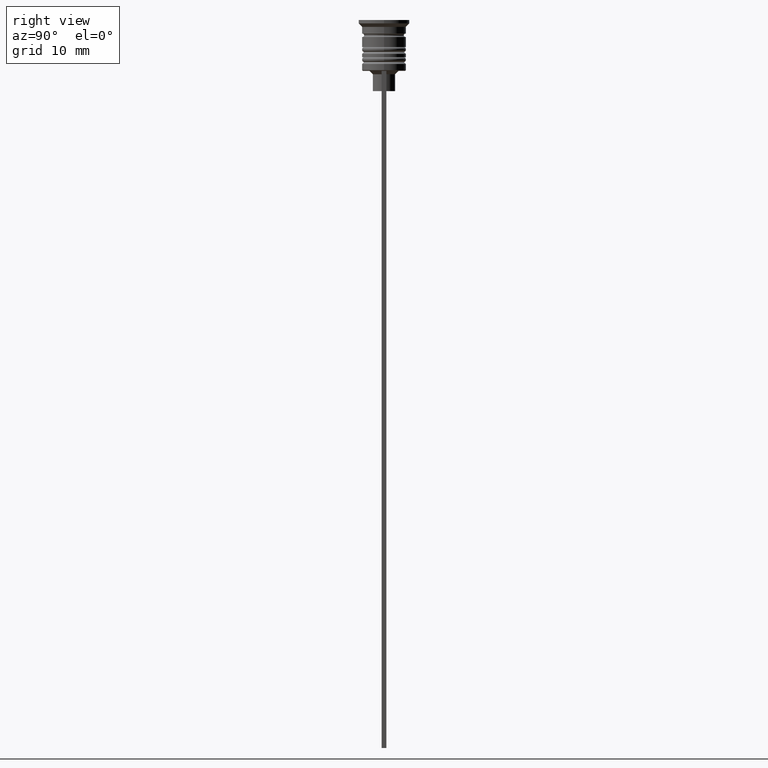
[diagram: clean part render]
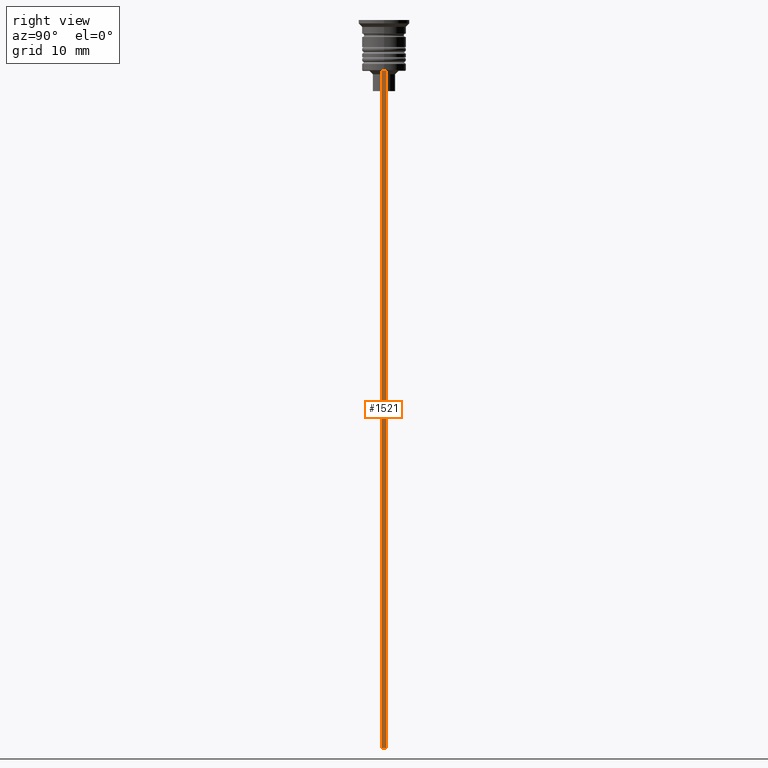
[diagram: same view with one face highlighted and labeled with its STEP entity id]
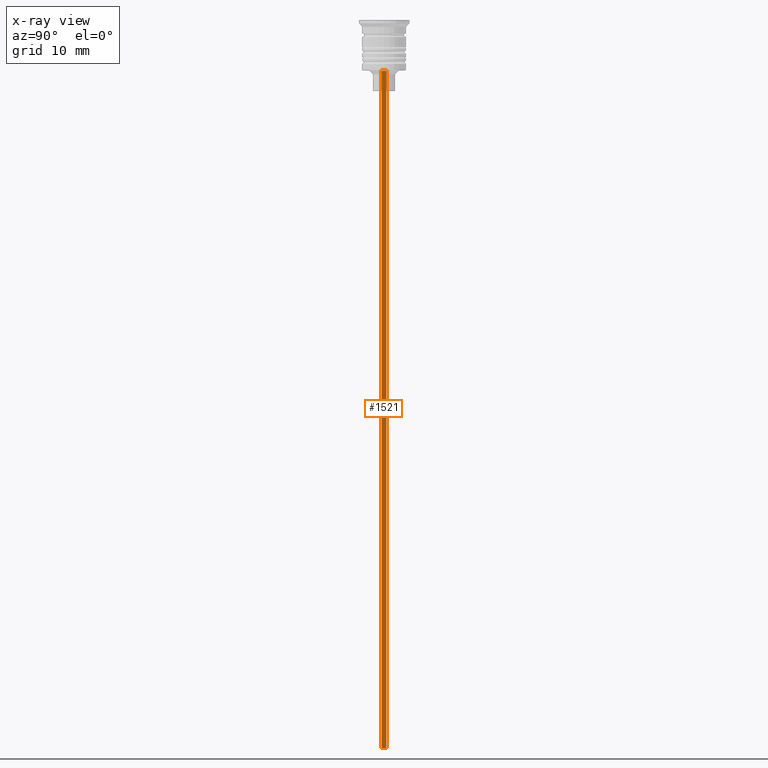
[diagram: x-ray of the same camera — body ghosted, the highlighted face saturated]
A machine part, right view. The second image highlights one B-rep face of the part: STEP entity #1521.
The next image is the same camera in x-ray: the body ghosted, the highlighted face saturated — about 0% of this face is hidden behind the body in this view.
In plain terms, the highlighted planar face has unit normal (-1, 0, 0).
Its self-contained STEP definition (entity closure, byte-faithful):
#24 = LINE ( 'NONE', #1868, #1920 ) ;
#151 = PLANE ( 'NONE',  #1078 ) ;
#189 = CARTESIAN_POINT ( 'NONE',  ( 2.999999999999995559, -0.3500000000000000333, -1.459304675784417915 ) ) ;
#288 = CARTESIAN_POINT ( 'NONE',  ( 2.999999999999995559, -0.3500000000000000333, -7.500000000000000000 ) ) ;
#302 = VECTOR ( 'NONE', #346, 1000.000000000000000 ) ;
#346 = DIRECTION ( 'NONE',  ( 0.000000000000000000, 0.000000000000000000, -1.000000000000000000 ) ) ;
#360 = DIRECTION ( 'NONE',  ( 0.000000000000000000, -1.000000000000000000, 0.000000000000000000 ) ) ;
#423 = VERTEX_POINT ( 'NONE', #1264 ) ;
#523 = CARTESIAN_POINT ( 'NONE',  ( 2.999999999999995559, 0.3500000000000000333, -1.459304675784417915 ) ) ;
#532 = LINE ( 'NONE', #523, #302 ) ;
#588 = VECTOR ( 'NONE', #1514, 1000.000000000000000 ) ;
#638 = EDGE_CURVE ( 'NONE', #1640, #1828, #1021, .T. ) ;
#738 = DIRECTION ( 'NONE',  ( 0.000000000000000000, 0.000000000000000000, 1.000000000000000000 ) ) ;
#744 = EDGE_CURVE ( 'NONE', #423, #1640, #24, .T. ) ;
#960 = LINE ( 'NONE', #992, #1998 ) ;
#970 = DIRECTION ( 'NONE',  ( 0.000000000000000000, 1.000000000000000000, 0.000000000000000000 ) ) ;
#992 = CARTESIAN_POINT ( 'NONE',  ( 2.999999999999995559, -0.3500000000000000333, -107.5000000000000000 ) ) ;
#1021 = LINE ( 'NONE', #189, #588 ) ;
#1078 = AXIS2_PLACEMENT_3D ( 'NONE', #1370, #1754, #738 ) ;
#1108 = ORIENTED_EDGE ( 'NONE', *, *, #1445, .T. ) ;
#1132 = ORIENTED_EDGE ( 'NONE', *, *, #1188, .F. ) ;
#1188 = EDGE_CURVE ( 'NONE', #423, #1966, #532, .T. ) ;
#1218 = ORIENTED_EDGE ( 'NONE', *, *, #744, .T. ) ;
#1264 = CARTESIAN_POINT ( 'NONE',  ( 2.999999999999995559, 0.3500000000000000333, -7.500000000000000000 ) ) ;
#1367 = CARTESIAN_POINT ( 'NONE',  ( 2.999999999999995559, 0.3500000000000000333, -107.5000000000000000 ) ) ;
#1370 = CARTESIAN_POINT ( 'NONE',  ( 2.999999999999995559, -0.3500000000000000333, -1.459304675784417915 ) ) ;
#1425 = EDGE_LOOP ( 'NONE', ( #1132, #1218, #1459, #1108 ) ) ;
#1445 = EDGE_CURVE ( 'NONE', #1828, #1966, #960, .T. ) ;
#1459 = ORIENTED_EDGE ( 'NONE', *, *, #638, .T. ) ;
#1514 = DIRECTION ( 'NONE',  ( 0.000000000000000000, 0.000000000000000000, -1.000000000000000000 ) ) ;
#1521 = ADVANCED_FACE ( 'NONE', ( #1657 ), #151, .F. ) ;
#1640 = VERTEX_POINT ( 'NONE', #288 ) ;
#1657 = FACE_OUTER_BOUND ( 'NONE', #1425, .T. ) ;
#1684 = CARTESIAN_POINT ( 'NONE',  ( 2.999999999999995559, -0.3500000000000000333, -107.5000000000000000 ) ) ;
#1754 = DIRECTION ( 'NONE',  ( -1.000000000000000000, 0.000000000000000000, 0.000000000000000000 ) ) ;
#1828 = VERTEX_POINT ( 'NONE', #1684 ) ;
#1868 = CARTESIAN_POINT ( 'NONE',  ( 2.999999999999995559, -0.3500000000000000333, -7.500000000000000000 ) ) ;
#1920 = VECTOR ( 'NONE', #360, 1000.000000000000000 ) ;
#1966 = VERTEX_POINT ( 'NONE', #1367 ) ;
#1998 = VECTOR ( 'NONE', #970, 1000.000000000000000 ) ;